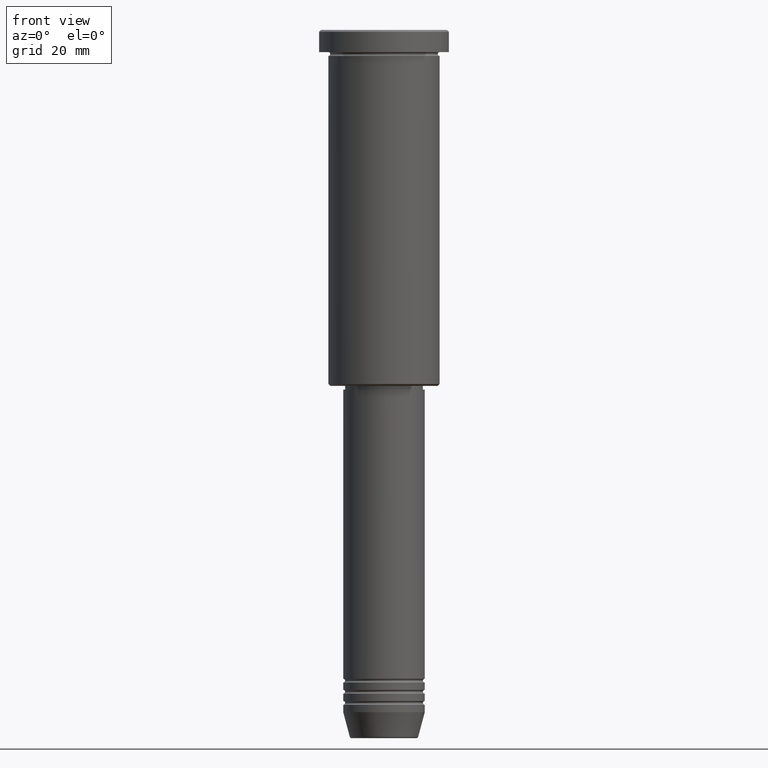
[diagram: clean part render]
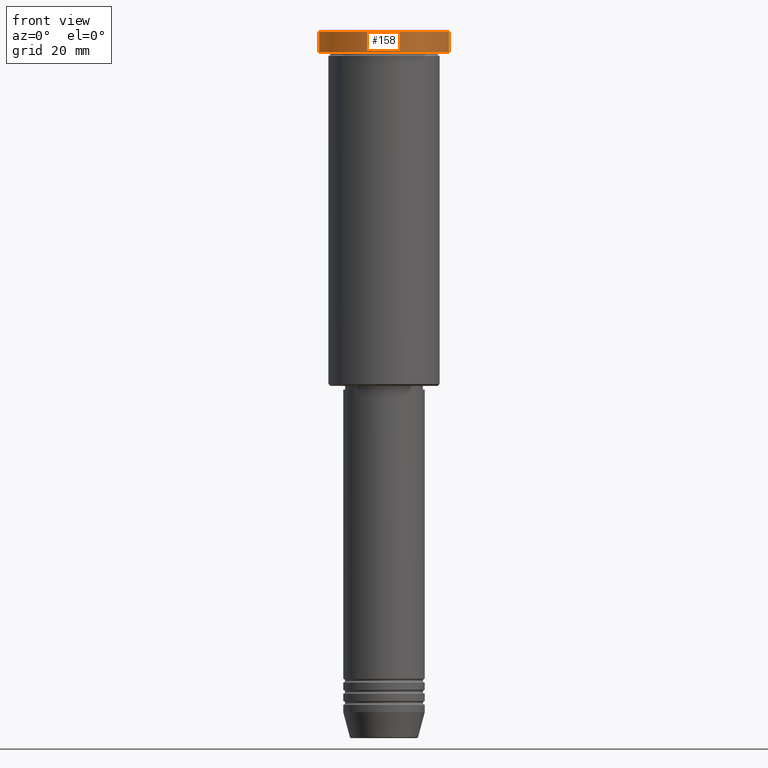
[diagram: same view with one face highlighted and labeled with its STEP entity id]
A machine part, front view. The second image highlights one B-rep face of the part: STEP entity #158.
In plain terms, the highlighted cylindrical surface (partial cylindrical patch) has radius 17.5 mm, axis along (-0, -0, 1).
Its self-contained STEP definition (entity closure, byte-faithful):
#87 = CARTESIAN_POINT ( 'NONE',  ( 0.000000000000000000, 0.000000000000000000, -0.5000000000000003331 ) ) ;
#92 = CARTESIAN_POINT ( 'NONE',  ( -17.50000000000000000, 2.143131898507868248E-15, -0.5000000000000003331 ) ) ;
#102 = CIRCLE ( 'NONE', #160, 17.50000000000000000 ) ;
#136 = ORIENTED_EDGE ( 'NONE', *, *, #142, .T. ) ;
#142 = EDGE_CURVE ( 'NONE', #596, #551, #102, .T. ) ;
#158 = ADVANCED_FACE ( 'NONE', ( #758 ), #360, .T. ) ;
#160 = AXIS2_PLACEMENT_3D ( 'NONE', #87, #175, #478 ) ;
#175 = DIRECTION ( 'NONE',  ( 0.000000000000000000, 0.000000000000000000, -1.000000000000000000 ) ) ;
#203 = LINE ( 'NONE', #656, #378 ) ;
#214 = DIRECTION ( 'NONE',  ( -0.000000000000000000, -0.000000000000000000, 1.000000000000000000 ) ) ;
#280 = VERTEX_POINT ( 'NONE', #290 ) ;
#286 = CARTESIAN_POINT ( 'NONE',  ( 0.000000000000000000, 0.000000000000000000, 0.000000000000000000 ) ) ;
#290 = CARTESIAN_POINT ( 'NONE',  ( -17.50000000000000000, 2.143131898507868248E-15, -5.999999999999995559 ) ) ;
#299 = EDGE_LOOP ( 'NONE', ( #847, #915, #740, #136 ) ) ;
#335 = VECTOR ( 'NONE', #1049, 1000.000000000000000 ) ;
#360 = CYLINDRICAL_SURFACE ( 'NONE', #911, 17.50000000000000000 ) ;
#378 = VECTOR ( 'NONE', #848, 1000.000000000000000 ) ;
#382 = CARTESIAN_POINT ( 'NONE',  ( 0.000000000000000000, 0.000000000000000000, -5.999999999999995559 ) ) ;
#430 = LINE ( 'NONE', #787, #335 ) ;
#448 = EDGE_CURVE ( 'NONE', #280, #455, #749, .T. ) ;
#455 = VERTEX_POINT ( 'NONE', #934 ) ;
#478 = DIRECTION ( 'NONE',  ( 1.000000000000000000, 0.000000000000000000, 0.000000000000000000 ) ) ;
#495 = CARTESIAN_POINT ( 'NONE',  ( 17.50000000000000000, 0.000000000000000000, -0.5000000000000003331 ) ) ;
#505 = AXIS2_PLACEMENT_3D ( 'NONE', #382, #214, #1123 ) ;
#551 = VERTEX_POINT ( 'NONE', #92 ) ;
#569 = DIRECTION ( 'NONE',  ( -0.000000000000000000, -0.000000000000000000, 1.000000000000000000 ) ) ;
#596 = VERTEX_POINT ( 'NONE', #495 ) ;
#656 = CARTESIAN_POINT ( 'NONE',  ( -17.50000000000000000, 2.143131898507868248E-15, 0.000000000000000000 ) ) ;
#740 = ORIENTED_EDGE ( 'NONE', *, *, #782, .T. ) ;
#749 = CIRCLE ( 'NONE', #505, 17.50000000000000000 ) ;
#758 = FACE_OUTER_BOUND ( 'NONE', #299, .T. ) ;
#782 = EDGE_CURVE ( 'NONE', #455, #596, #430, .T. ) ;
#787 = CARTESIAN_POINT ( 'NONE',  ( 17.50000000000000000, 0.000000000000000000, 0.000000000000000000 ) ) ;
#847 = ORIENTED_EDGE ( 'NONE', *, *, #1138, .F. ) ;
#848 = DIRECTION ( 'NONE',  ( -0.000000000000000000, -0.000000000000000000, 1.000000000000000000 ) ) ;
#911 = AXIS2_PLACEMENT_3D ( 'NONE', #286, #569, #1051 ) ;
#915 = ORIENTED_EDGE ( 'NONE', *, *, #448, .T. ) ;
#934 = CARTESIAN_POINT ( 'NONE',  ( 17.50000000000000000, 0.000000000000000000, -5.999999999999995559 ) ) ;
#1049 = DIRECTION ( 'NONE',  ( -0.000000000000000000, -0.000000000000000000, 1.000000000000000000 ) ) ;
#1051 = DIRECTION ( 'NONE',  ( 1.000000000000000000, 0.000000000000000000, 0.000000000000000000 ) ) ;
#1123 = DIRECTION ( 'NONE',  ( 1.000000000000000000, 0.000000000000000000, 0.000000000000000000 ) ) ;
#1138 = EDGE_CURVE ( 'NONE', #280, #551, #203, .T. ) ;